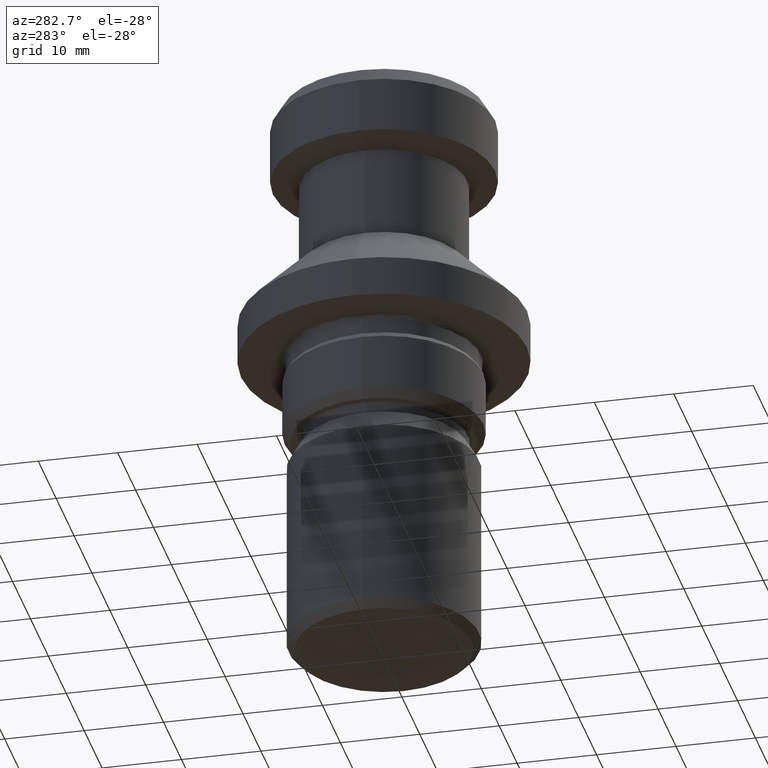
[diagram: clean part render]
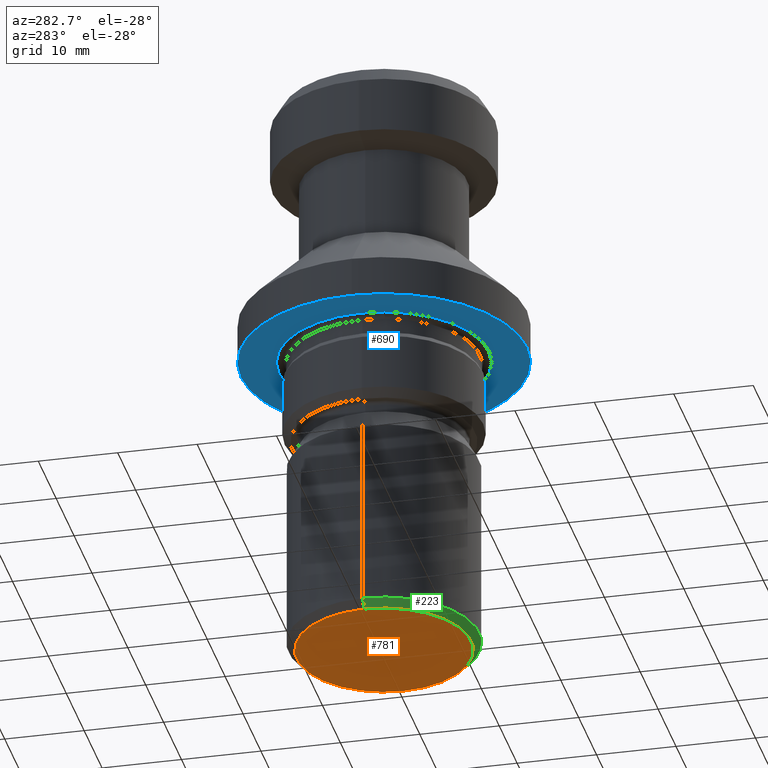
[diagram: same view with three faces highlighted in distinct colors, each labeled with its STEP entity id]
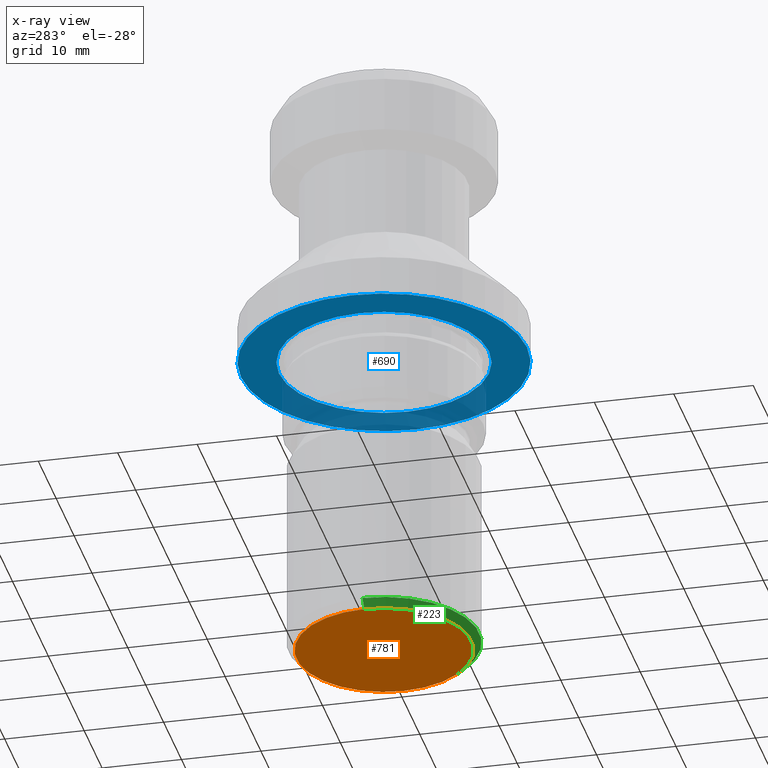
[diagram: x-ray of the same camera — body ghosted, the three highlighted faces saturated]
A machine part, auxiliary view with three faces highlighted in distinct colors.
The next image is the same camera in x-ray (body ghosted, the three faces saturated) — at least one of them is partly hidden behind the body in this view.
Their STEP definitions:

[orange] entity #781 — the highlighted planar face has unit normal (0, -0, 1).
#4 = DIRECTION ( 'NONE',  ( 1.000000000000000000, 0.0000000000000000000, 0.0000000000000000000 ) ) ;
#11 = DIRECTION ( 'NONE',  ( 1.000000000000000000, 0.0000000000000000000, 0.0000000000000000000 ) ) ;
#74 = FACE_OUTER_BOUND ( 'NONE', #806, .T. ) ;
#106 = CARTESIAN_POINT ( 'NONE',  ( -11.00000000000000000, 1.408343819019456200E-015, -74.00000000000000000 ) ) ;
#126 = AXIS2_PLACEMENT_3D ( 'NONE', #199, #700, #290 ) ;
#155 = ORIENTED_EDGE ( 'NONE', *, *, #838, .F. ) ;
#199 = CARTESIAN_POINT ( 'NONE',  ( 0.0000000000000000000, 0.0000000000000000000, -74.00000000000000000 ) ) ;
#241 = CIRCLE ( 'NONE', #327, 11.00000000000000000 ) ;
#260 = DIRECTION ( 'NONE',  ( 0.0000000000000000000, -0.0000000000000000000, 1.000000000000000000 ) ) ;
#274 = AXIS2_PLACEMENT_3D ( 'NONE', #865, #260, #11 ) ;
#290 = DIRECTION ( 'NONE',  ( 1.000000000000000000, 0.0000000000000000000, 0.0000000000000000000 ) ) ;
#317 = CIRCLE ( 'NONE', #126, 11.00000000000000000 ) ;
#327 = AXIS2_PLACEMENT_3D ( 'NONE', #385, #405, #4 ) ;
#328 = VERTEX_POINT ( 'NONE', #106 ) ;
#330 = ORIENTED_EDGE ( 'NONE', *, *, #834, .F. ) ;
#385 = CARTESIAN_POINT ( 'NONE',  ( 0.0000000000000000000, 0.0000000000000000000, -74.00000000000000000 ) ) ;
#405 = DIRECTION ( 'NONE',  ( -0.0000000000000000000, -0.0000000000000000000, 1.000000000000000000 ) ) ;
#432 = PLANE ( 'NONE',  #274 ) ;
#700 = DIRECTION ( 'NONE',  ( -0.0000000000000000000, -0.0000000000000000000, 1.000000000000000000 ) ) ;
#781 = ADVANCED_FACE ( 'NONE', ( #74 ), #432, .F. ) ;
#806 = EDGE_LOOP ( 'NONE', ( #330, #155 ) ) ;
#834 = EDGE_CURVE ( 'NONE', #937, #328, #317, .T. ) ;
#838 = EDGE_CURVE ( 'NONE', #328, #937, #241, .T. ) ;
#865 = CARTESIAN_POINT ( 'NONE',  ( 0.0000000000000000000, 11.00000000000000000, -74.00000000000000000 ) ) ;
#937 = VERTEX_POINT ( 'NONE', #951 ) ;
#951 = CARTESIAN_POINT ( 'NONE',  ( 11.00000000000000000, 0.0000000000000000000, -74.00000000000000000 ) ) ;

[blue] entity #690 — the highlighted planar face has unit normal (0, -0, 1).
#38 = AXIS2_PLACEMENT_3D ( 'NONE', #381, #938, #960 ) ;
#52 = ORIENTED_EDGE ( 'NONE', *, *, #1015, .F. ) ;
#55 = AXIS2_PLACEMENT_3D ( 'NONE', #926, #95, #426 ) ;
#89 = CARTESIAN_POINT ( 'NONE',  ( 0.0000000000000000000, 0.0000000000000000000, -34.00000000000000000 ) ) ;
#95 = DIRECTION ( 'NONE',  ( -0.0000000000000000000, -0.0000000000000000000, 1.000000000000000000 ) ) ;
#121 = CIRCLE ( 'NONE', #55, 13.23000000000000200 ) ;
#125 = PLANE ( 'NONE',  #38 ) ;
#201 = VERTEX_POINT ( 'NONE', #530 ) ;
#296 = EDGE_CURVE ( 'NONE', #387, #322, #862, .T. ) ;
#322 = VERTEX_POINT ( 'NONE', #843 ) ;
#332 = FACE_BOUND ( 'NONE', #1039, .T. ) ;
#333 = ORIENTED_EDGE ( 'NONE', *, *, #296, .T. ) ;
#359 = DIRECTION ( 'NONE',  ( 1.000000000000000000, 0.0000000000000000000, 0.0000000000000000000 ) ) ;
#381 = CARTESIAN_POINT ( 'NONE',  ( 0.0000000000000000000, 18.00000000000000000, -34.00000000000000000 ) ) ;
#387 = VERTEX_POINT ( 'NONE', #733 ) ;
#426 = DIRECTION ( 'NONE',  ( 1.000000000000000000, 0.0000000000000000000, 0.0000000000000000000 ) ) ;
#530 = CARTESIAN_POINT ( 'NONE',  ( -18.00000000000000000, 2.204364238465235400E-015, -34.00000000000000000 ) ) ;
#534 = FACE_OUTER_BOUND ( 'NONE', #1038, .T. ) ;
#537 = DIRECTION ( 'NONE',  ( -0.0000000000000000000, -0.0000000000000000000, 1.000000000000000000 ) ) ;
#542 = DIRECTION ( 'NONE',  ( 1.000000000000000000, 0.0000000000000000000, 0.0000000000000000000 ) ) ;
#561 = DIRECTION ( 'NONE',  ( 1.000000000000000000, 0.0000000000000000000, 0.0000000000000000000 ) ) ;
#632 = DIRECTION ( 'NONE',  ( -0.0000000000000000000, -0.0000000000000000000, 1.000000000000000000 ) ) ;
#637 = CIRCLE ( 'NONE', #948, 18.00000000000000000 ) ;
#654 = ORIENTED_EDGE ( 'NONE', *, *, #722, .T. ) ;
#664 = CARTESIAN_POINT ( 'NONE',  ( 18.00000000000000000, 0.0000000000000000000, -34.00000000000000000 ) ) ;
#690 = ADVANCED_FACE ( 'NONE', ( #534, #332 ), #125, .F. ) ;
#697 = CARTESIAN_POINT ( 'NONE',  ( 0.0000000000000000000, 0.0000000000000000000, -34.00000000000000000 ) ) ;
#722 = EDGE_CURVE ( 'NONE', #322, #387, #121, .T. ) ;
#733 = CARTESIAN_POINT ( 'NONE',  ( -13.23000000000000200, 0.0000000000000000000, -34.00000000000000000 ) ) ;
#780 = VERTEX_POINT ( 'NONE', #664 ) ;
#843 = CARTESIAN_POINT ( 'NONE',  ( 13.23000000000000200, 1.620207715271948500E-015, -34.00000000000000000 ) ) ;
#848 = EDGE_CURVE ( 'NONE', #201, #780, #637, .T. ) ;
#858 = CIRCLE ( 'NONE', #911, 18.00000000000000000 ) ;
#862 = CIRCLE ( 'NONE', #1032, 13.23000000000000200 ) ;
#911 = AXIS2_PLACEMENT_3D ( 'NONE', #89, #632, #542 ) ;
#926 = CARTESIAN_POINT ( 'NONE',  ( 0.0000000000000000000, 0.0000000000000000000, -34.00000000000000000 ) ) ;
#938 = DIRECTION ( 'NONE',  ( 0.0000000000000000000, -0.0000000000000000000, 1.000000000000000000 ) ) ;
#948 = AXIS2_PLACEMENT_3D ( 'NONE', #697, #537, #359 ) ;
#960 = DIRECTION ( 'NONE',  ( 1.000000000000000000, 0.0000000000000000000, 0.0000000000000000000 ) ) ;
#990 = CARTESIAN_POINT ( 'NONE',  ( 0.0000000000000000000, 0.0000000000000000000, -34.00000000000000000 ) ) ;
#994 = ORIENTED_EDGE ( 'NONE', *, *, #848, .F. ) ;
#1008 = DIRECTION ( 'NONE',  ( -0.0000000000000000000, -0.0000000000000000000, 1.000000000000000000 ) ) ;
#1015 = EDGE_CURVE ( 'NONE', #780, #201, #858, .T. ) ;
#1032 = AXIS2_PLACEMENT_3D ( 'NONE', #990, #1008, #561 ) ;
#1038 = EDGE_LOOP ( 'NONE', ( #52, #994 ) ) ;
#1039 = EDGE_LOOP ( 'NONE', ( #333, #654 ) ) ;

[green] entity #223 — the highlighted conical surface has half-angle 45 deg.
#4 = DIRECTION ( 'NONE',  ( 1.000000000000000000, 0.0000000000000000000, 0.0000000000000000000 ) ) ;
#15 = ORIENTED_EDGE ( 'NONE', *, *, #665, .F. ) ;
#30 = DIRECTION ( 'NONE',  ( 1.000000000000000000, 0.0000000000000000000, 0.0000000000000000000 ) ) ;
#61 = DIRECTION ( 'NONE',  ( -0.0000000000000000000, -0.0000000000000000000, 1.000000000000000000 ) ) ;
#66 = CIRCLE ( 'NONE', #750, 12.00000000000000000 ) ;
#106 = CARTESIAN_POINT ( 'NONE',  ( -11.00000000000000000, 1.408343819019456200E-015, -74.00000000000000000 ) ) ;
#148 = CARTESIAN_POINT ( 'NONE',  ( -11.00000000000000000, 1.347111479062088400E-015, -74.00000000000000000 ) ) ;
#174 = ORIENTED_EDGE ( 'NONE', *, *, #838, .T. ) ;
#216 = VERTEX_POINT ( 'NONE', #416 ) ;
#221 = DIRECTION ( 'NONE',  ( 1.000000000000000000, 0.0000000000000000000, 0.0000000000000000000 ) ) ;
#223 = ADVANCED_FACE ( 'NONE', ( #307 ), #281, .T. ) ;
#241 = CIRCLE ( 'NONE', #327, 11.00000000000000000 ) ;
#244 = EDGE_CURVE ( 'NONE', #684, #216, #66, .T. ) ;
#271 = DIRECTION ( 'NONE',  ( -0.7071067811865525700, 8.659560562354994500E-017, 0.7071067811865425800 ) ) ;
#281 = CONICAL_SURFACE ( 'NONE', #428, 11.00000000000000000, 0.7853981633974552700 ) ;
#288 = LINE ( 'NONE', #474, #676 ) ;
#307 = FACE_OUTER_BOUND ( 'NONE', #558, .T. ) ;
#308 = CARTESIAN_POINT ( 'NONE',  ( -12.00000000000000000, 1.469576158976823900E-015, -73.00000000000001400 ) ) ;
#327 = AXIS2_PLACEMENT_3D ( 'NONE', #385, #405, #4 ) ;
#328 = VERTEX_POINT ( 'NONE', #106 ) ;
#353 = LINE ( 'NONE', #148, #744 ) ;
#385 = CARTESIAN_POINT ( 'NONE',  ( 0.0000000000000000000, 0.0000000000000000000, -74.00000000000000000 ) ) ;
#405 = DIRECTION ( 'NONE',  ( -0.0000000000000000000, -0.0000000000000000000, 1.000000000000000000 ) ) ;
#416 = CARTESIAN_POINT ( 'NONE',  ( 12.00000000000000000, 0.0000000000000000000, -73.00000000000001400 ) ) ;
#428 = AXIS2_PLACEMENT_3D ( 'NONE', #638, #667, #30 ) ;
#474 = CARTESIAN_POINT ( 'NONE',  ( 11.00000000000000000, 0.0000000000000000000, -74.00000000000000000 ) ) ;
#477 = ORIENTED_EDGE ( 'NONE', *, *, #244, .F. ) ;
#490 = ORIENTED_EDGE ( 'NONE', *, *, #791, .T. ) ;
#558 = EDGE_LOOP ( 'NONE', ( #15, #174, #490, #477 ) ) ;
#586 = CARTESIAN_POINT ( 'NONE',  ( 0.0000000000000000000, 0.0000000000000000000, -73.00000000000001400 ) ) ;
#638 = CARTESIAN_POINT ( 'NONE',  ( 0.0000000000000000000, 0.0000000000000000000, -74.00000000000000000 ) ) ;
#665 = EDGE_CURVE ( 'NONE', #328, #684, #353, .T. ) ;
#667 = DIRECTION ( 'NONE',  ( -0.0000000000000000000, -0.0000000000000000000, 1.000000000000000000 ) ) ;
#676 = VECTOR ( 'NONE', #1026, 999.9999999999998900 ) ;
#684 = VERTEX_POINT ( 'NONE', #308 ) ;
#744 = VECTOR ( 'NONE', #271, 999.9999999999998900 ) ;
#750 = AXIS2_PLACEMENT_3D ( 'NONE', #586, #61, #221 ) ;
#791 = EDGE_CURVE ( 'NONE', #937, #216, #288, .T. ) ;
#838 = EDGE_CURVE ( 'NONE', #328, #937, #241, .T. ) ;
#937 = VERTEX_POINT ( 'NONE', #951 ) ;
#951 = CARTESIAN_POINT ( 'NONE',  ( 11.00000000000000000, 0.0000000000000000000, -74.00000000000000000 ) ) ;
#1026 = DIRECTION ( 'NONE',  ( 0.7071067811865525700, 0.0000000000000000000, 0.7071067811865425800 ) ) ;